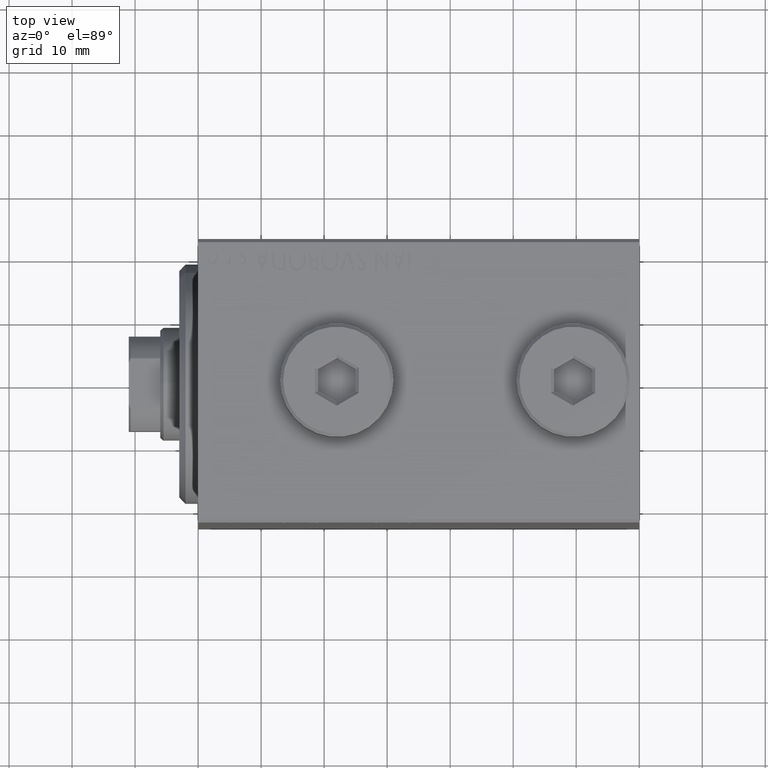
[diagram: clean part render]
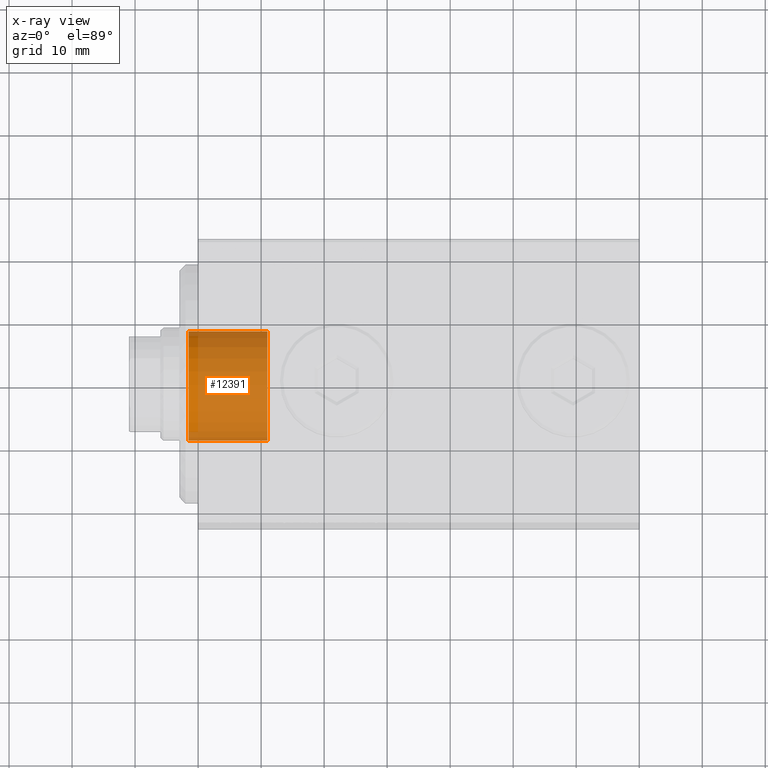
[diagram: x-ray — body ghosted, one internal face saturated and labeled with its STEP entity id]
A machine part, top view, then the same camera in x-ray: the body is ghosted and one INTERNAL B-rep face — a face not visible from any outside direction — is saturated and labeled: STEP entity #12391.
In plain terms, the highlighted cylindrical surface (partial cylindrical patch) has radius 9 mm, axis along (-1, 0, 0).
Its self-contained STEP definition (entity closure, byte-faithful):
#2948 = CYLINDRICAL_SURFACE ( 'NONE', #33183, 9.000000000000000000 ) ;
#3570 = CARTESIAN_POINT ( 'NONE',  ( 1.499999999999999556, 1.102182119232617517E-15, 9.000000000000000000 ) ) ;
#5442 = CIRCLE ( 'NONE', #36848, 9.000000000000000000 ) ;
#8496 = ORIENTED_EDGE ( 'NONE', *, *, #9208, .F. ) ;
#8961 = EDGE_LOOP ( 'NONE', ( #8496, #36858, #34984, #10300 ) ) ;
#9002 = DIRECTION ( 'NONE',  ( 1.000000000000000000, -0.000000000000000000, -0.000000000000000000 ) ) ;
#9208 = EDGE_CURVE ( 'NONE', #11145, #10452, #5442, .T. ) ;
#10300 = ORIENTED_EDGE ( 'NONE', *, *, #42935, .F. ) ;
#10452 = VERTEX_POINT ( 'NONE', #11656 ) ;
#11145 = VERTEX_POINT ( 'NONE', #25214 ) ;
#11656 = CARTESIAN_POINT ( 'NONE',  ( -11.00000000000000000, 0.000000000000000000, -9.000000000000000000 ) ) ;
#12391 = ADVANCED_FACE ( 'NONE', ( #34279 ), #2948, .F. ) ;
#13831 = VECTOR ( 'NONE', #43669, 1000.000000000000000 ) ;
#14618 = AXIS2_PLACEMENT_3D ( 'NONE', #42541, #39343, #15340 ) ;
#15340 = DIRECTION ( 'NONE',  ( 0.000000000000000000, 0.000000000000000000, -1.000000000000000000 ) ) ;
#16561 = CARTESIAN_POINT ( 'NONE',  ( -11.00000000000000000, 1.102182119232617517E-15, 9.000000000000000000 ) ) ;
#17344 = DIRECTION ( 'NONE',  ( 0.000000000000000000, 0.000000000000000000, -1.000000000000000000 ) ) ;
#19992 = LINE ( 'NONE', #16561, #26091 ) ;
#20379 = EDGE_CURVE ( 'NONE', #11145, #26058, #19992, .T. ) ;
#23361 = CIRCLE ( 'NONE', #14618, 9.000000000000000000 ) ;
#23859 = DIRECTION ( 'NONE',  ( 0.000000000000000000, 0.000000000000000000, -1.000000000000000000 ) ) ;
#25214 = CARTESIAN_POINT ( 'NONE',  ( -11.00000000000000000, 1.102182119232617517E-15, 9.000000000000000000 ) ) ;
#26058 = VERTEX_POINT ( 'NONE', #3570 ) ;
#26091 = VECTOR ( 'NONE', #9002, 1000.000000000000000 ) ;
#27746 = CARTESIAN_POINT ( 'NONE',  ( -11.00000000000000000, 0.000000000000000000, 0.000000000000000000 ) ) ;
#28023 = VERTEX_POINT ( 'NONE', #45138 ) ;
#33183 = AXIS2_PLACEMENT_3D ( 'NONE', #38150, #34499, #17344 ) ;
#33602 = CARTESIAN_POINT ( 'NONE',  ( -11.00000000000000000, 0.000000000000000000, -9.000000000000000000 ) ) ;
#34279 = FACE_OUTER_BOUND ( 'NONE', #8961, .T. ) ;
#34499 = DIRECTION ( 'NONE',  ( 1.000000000000000000, -0.000000000000000000, -0.000000000000000000 ) ) ;
#34984 = ORIENTED_EDGE ( 'NONE', *, *, #43804, .T. ) ;
#36848 = AXIS2_PLACEMENT_3D ( 'NONE', #27746, #41681, #23859 ) ;
#36858 = ORIENTED_EDGE ( 'NONE', *, *, #20379, .T. ) ;
#38150 = CARTESIAN_POINT ( 'NONE',  ( -11.00000000000000000, 0.000000000000000000, 0.000000000000000000 ) ) ;
#39343 = DIRECTION ( 'NONE',  ( 1.000000000000000000, 0.000000000000000000, 0.000000000000000000 ) ) ;
#40231 = LINE ( 'NONE', #33602, #13831 ) ;
#41681 = DIRECTION ( 'NONE',  ( 1.000000000000000000, 0.000000000000000000, 0.000000000000000000 ) ) ;
#42541 = CARTESIAN_POINT ( 'NONE',  ( 1.499999999999999556, 0.000000000000000000, 0.000000000000000000 ) ) ;
#42935 = EDGE_CURVE ( 'NONE', #10452, #28023, #40231, .T. ) ;
#43669 = DIRECTION ( 'NONE',  ( 1.000000000000000000, -0.000000000000000000, -0.000000000000000000 ) ) ;
#43804 = EDGE_CURVE ( 'NONE', #26058, #28023, #23361, .T. ) ;
#45138 = CARTESIAN_POINT ( 'NONE',  ( 1.499999999999999556, 0.000000000000000000, -9.000000000000000000 ) ) ;